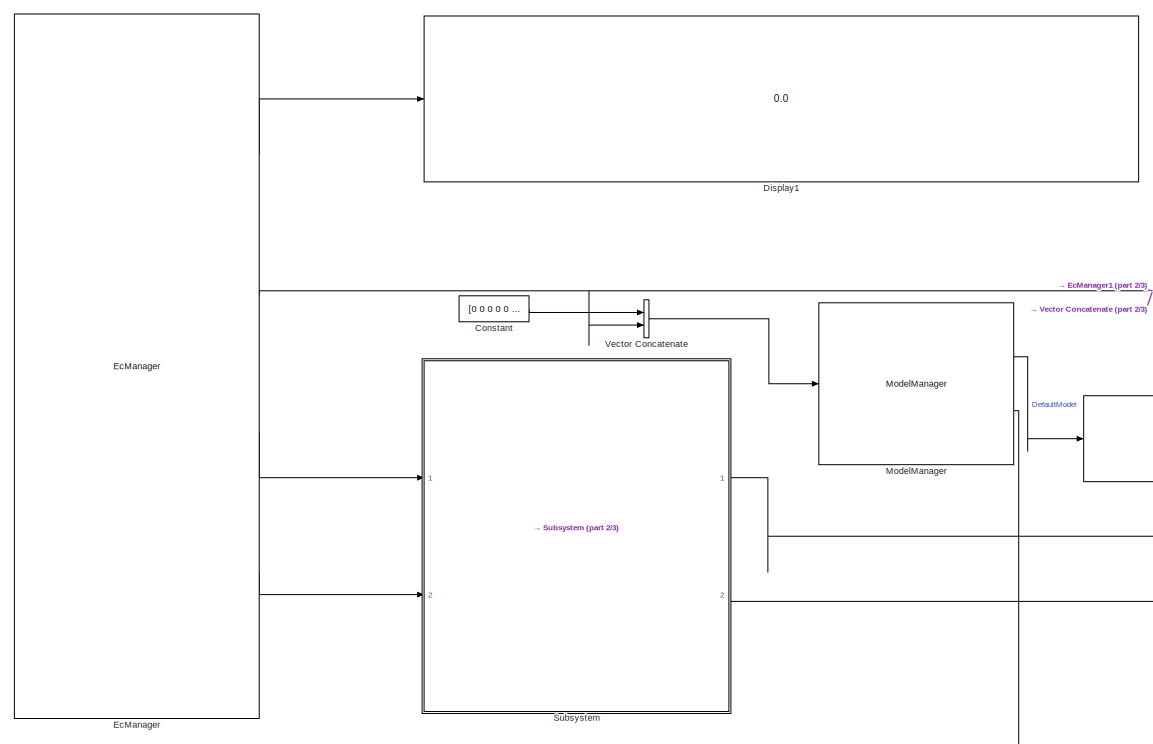
[diagram: root canvas - part 1/3, left side, full height]
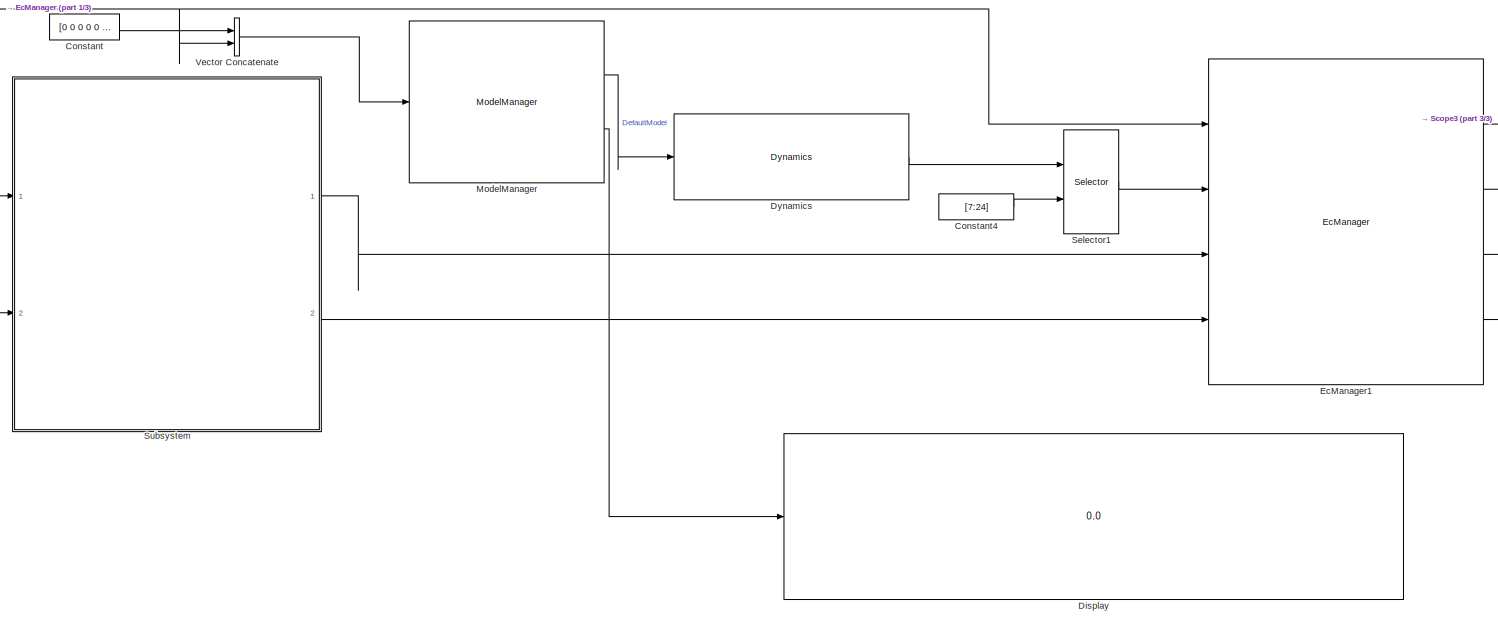
[diagram: root canvas - part 2/3, central region]
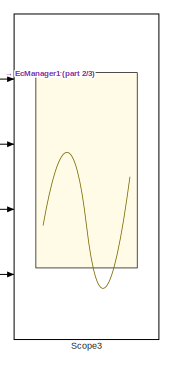
[diagram: root canvas - part 3/3, middle right region]
MODEL slx_e4fbf35a7627
KIND model
CONFIG AbsTol = auto
CONFIG EnableMultiTasking = off
CONFIG FixedStep = 0.05
CONFIG MaxStep = auto
CONFIG MinStep = auto
CONFIG RelTol = 1e-3
CONFIG SampleTimeConstraint = Unconstrained
CONFIG SolverName = ode3
CONFIG StartTime = 0.0
CONFIG StopTime = inf
BLOCK [Constant] Constant
  Value = [0 0 0 0 0 0]
BLOCK [Constant] Constant4
  Value = [7:24]
  VectorParams1D = off
BLOCK [Display] Display
  Decimation = 1
  Ports = [1]
BLOCK [Display] Display1
  Decimation = 1
  Ports = [1]
BLOCK [Reference] Dynamics  REF=Utilities/Dynamics
  Ports = [1, 1]
  SourceBlock = Utilities/Dynamics
  SourceProductName = XBotBlock Toolbox
BLOCK [Reference] EcManager  REF=EcBlockToolbox/EcManager
  Ports = [0, 4]
  SourceBlock = EcBlockToolbox/EcManager
  SourceProductName = EcBlock Toolbox
BLOCK [Reference] EcManager1  REF=EcBlockToolbox/EcManager
  Ports = [4, 4]
  SourceBlock = EcBlockToolbox/EcManager
  SourceProductName = EcBlock Toolbox
BLOCK [Reference] ModelManager  REF=XBotBlockToolbox/ModelManager
  Ports = [1, 2]
  SourceBlock = XBotBlockToolbox/ModelManager
  SourceProductName = XBotBlock Toolbox
BLOCK [Scope] Scope3
  Floating = off
  NumInputPorts = 4
  Ports = [4]
  ScopeSpecificationString = Simulink.scopes.TimeScopeBlockCfg('CurrentConfiguration', extmgr.ConfigurationSet(extmgr.Configuration('Core','General UI',true),extmgr.Configuration('Core','Source UI',true),extmgr.Configuration('Sources','WiredSimulink',true,'DataLoggingVariableName','ScopeData1'),extmgr.Configuration('Visuals','Time Domain',true,'SerializedDisplays',{struct('MinYLimReal','-1.00000','MaxYLimReal','1.00000','YLab...<+4653ch>
BLOCK [Selector] Selector1
  IndexOptions = Select all,Index vector (port)
  Indices = [1 3],1
  NumberOfDimensions = 2
  OutputSizes = 1,1
  Ports = [2, 1]
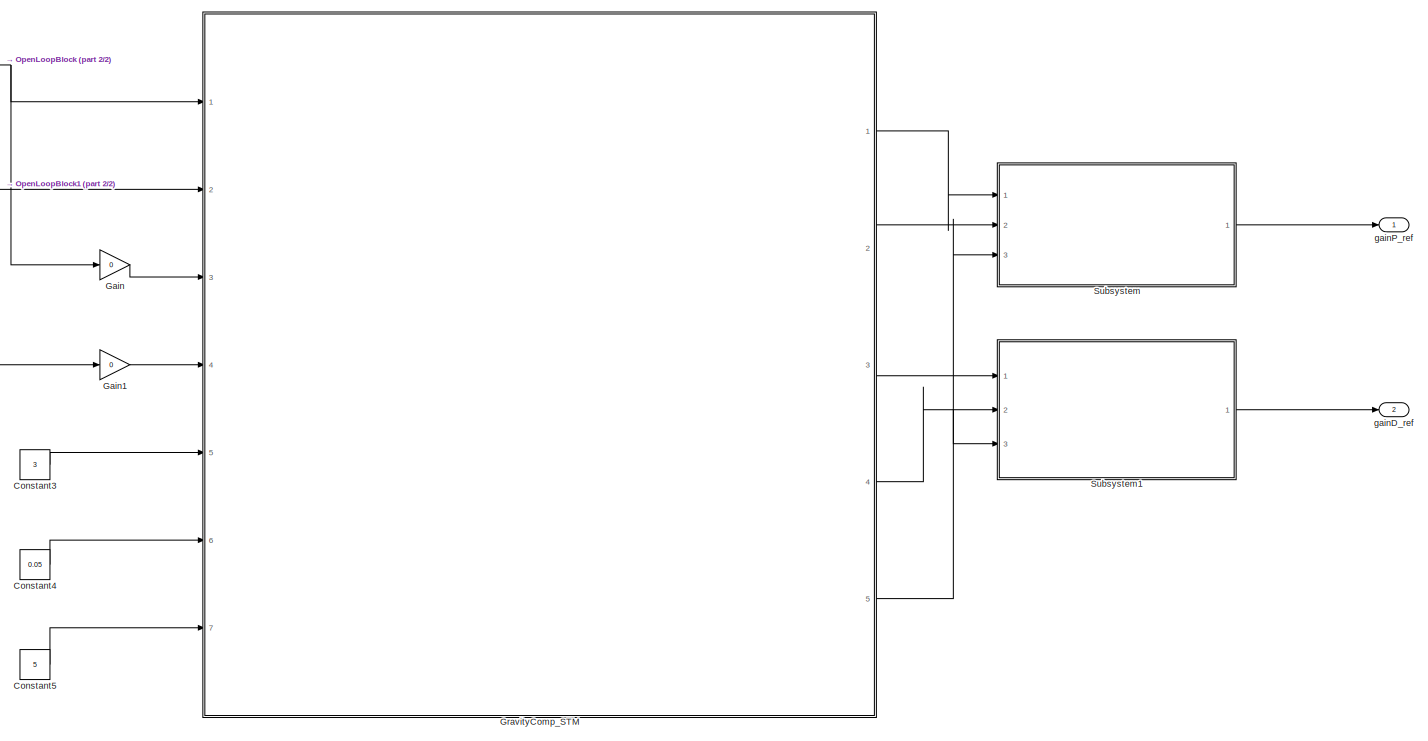
[diagram: Subsystem - part 1/2, center side, full height]
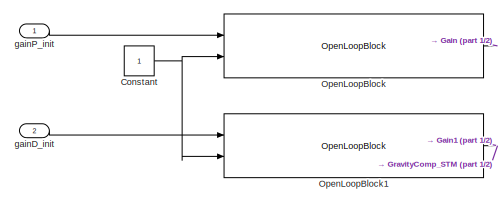
[diagram: Subsystem - part 2/2, top left region]
BLOCK [SubSystem] Subsystem
  Ports = [2, 2]
  RequestExecContextInheritance = off
BLOCK [Constant] Subsystem/Constant
BLOCK [Constant] Subsystem/Constant3
  Value = 3
BLOCK [Constant] Subsystem/Constant4
  Value = 0.05
BLOCK [Constant] Subsystem/Constant5
  Value = 5
BLOCK [Gain] Subsystem/Gain
  Gain = 0
BLOCK [Gain] Subsystem/Gain1
  Gain = 0
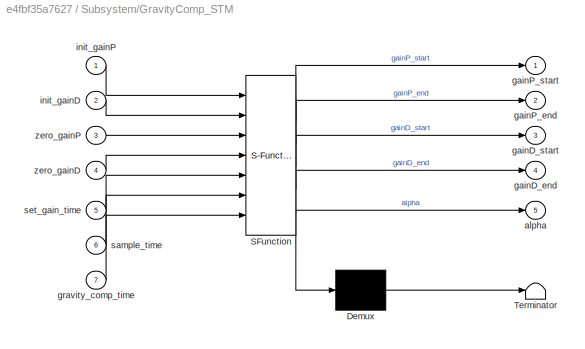
BLOCK [SubSystem] Subsystem/GravityComp_STM
  ErrorFcn = Stateflow.Translate.translate
  PermitHierarchicalResolution = ExplicitOnly
  Ports = [7, 5]
  RequestExecContextInheritance = off
  SFBlockType = Chart
  TreatAsAtomicUnit = on
BLOCK [Demux] Subsystem/GravityComp_STM/ Demux 
  Outputs = 1
  Ports = [1, 1]
BLOCK [S-Function] Subsystem/GravityComp_STM/ SFunction 
  EnableBusSupport = on
  FunctionName = sf_sfun
  PortCounts = [7 6]
  Ports = [7, 6]
  SFcnIsStateOwnerBlock = off
  SFunctionDeploymentMode = off
  Tag = Stateflow S-Function 3
BLOCK [Terminator] Subsystem/GravityComp_STM/ Terminator 
BLOCK [Outport] Subsystem/GravityComp_STM/alpha
  Port = 5
BLOCK [Outport] Subsystem/GravityComp_STM/gainD_end
  Port = 4
BLOCK [Outport] Subsystem/GravityComp_STM/gainD_start
  Port = 3
BLOCK [Outport] Subsystem/GravityComp_STM/gainP_end
  Port = 2
BLOCK [Outport] Subsystem/GravityComp_STM/gainP_start
BLOCK [Inport] Subsystem/GravityComp_STM/gravity_comp_time
  Port = 7
BLOCK [Inport] Subsystem/GravityComp_STM/init_gainD
  Port = 2
BLOCK [Inport] Subsystem/GravityComp_STM/init_gainP
BLOCK [Inport] Subsystem/GravityComp_STM/sample_time
  Port = 6
BLOCK [Inport] Subsystem/GravityComp_STM/set_gain_time
  Port = 5
BLOCK [Inport] Subsystem/GravityComp_STM/zero_gainD
  Port = 4
BLOCK [Inport] Subsystem/GravityComp_STM/zero_gainP
  Port = 3
BLOCK [Reference] Subsystem/OpenLoopBlock  REF=EcUtilities/OpenLoopBlock
  Ports = [2, 1]
  SourceBlock = EcUtilities/OpenLoopBlock
  SourceProductName = EcBlock Toolbox
  SourceType = SubSystem
BLOCK [Reference] Subsystem/OpenLoopBlock1  REF=EcUtilities/OpenLoopBlock
  Ports = [2, 1]
  SourceBlock = EcUtilities/OpenLoopBlock
  SourceProductName = EcBlock Toolbox
  SourceType = SubSystem
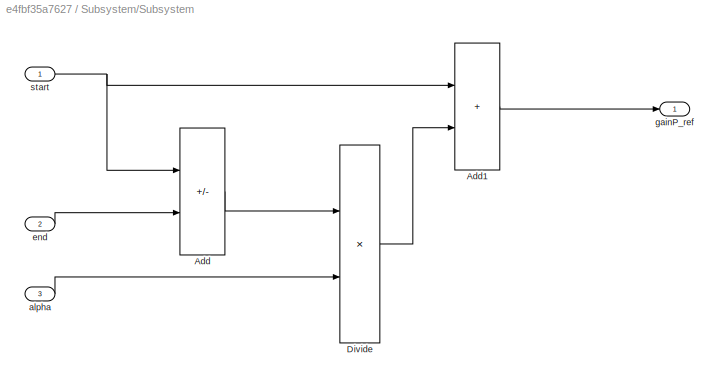
BLOCK [SubSystem] Subsystem/Subsystem
  Ports = [3, 1]
  RequestExecContextInheritance = off
BLOCK [Sum] Subsystem/Subsystem/Add
  IconShape = rectangular
  Inputs = -+
  Ports = [2, 1]
BLOCK [Sum] Subsystem/Subsystem/Add1
  IconShape = rectangular
  Ports = [2, 1]
BLOCK [Product] Subsystem/Subsystem/Divide
  Inputs = **
  Ports = [2, 1]
BLOCK [Inport] Subsystem/Subsystem/alpha
  Port = 3
BLOCK [Inport] Subsystem/Subsystem/end
  Port = 2
BLOCK [Outport] Subsystem/Subsystem/gainP_ref
BLOCK [Inport] Subsystem/Subsystem/start
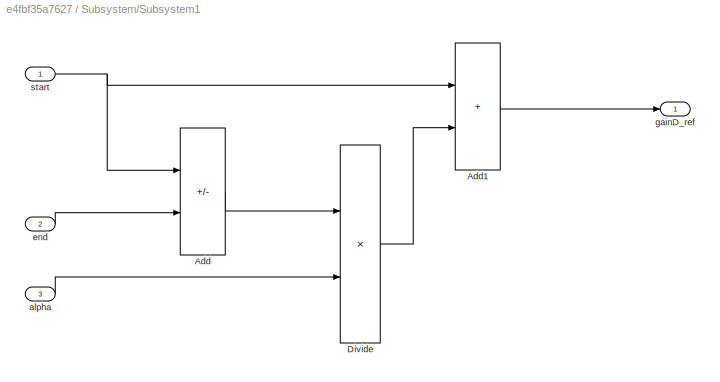
BLOCK [SubSystem] Subsystem/Subsystem1
  Ports = [3, 1]
  RequestExecContextInheritance = off
BLOCK [Sum] Subsystem/Subsystem1/Add
  IconShape = rectangular
  Inputs = -+
  Ports = [2, 1]
BLOCK [Sum] Subsystem/Subsystem1/Add1
  IconShape = rectangular
  Ports = [2, 1]
BLOCK [Product] Subsystem/Subsystem1/Divide
  Inputs = **
  Ports = [2, 1]
BLOCK [Inport] Subsystem/Subsystem1/alpha
  Port = 3
BLOCK [Inport] Subsystem/Subsystem1/end
  Port = 2
BLOCK [Outport] Subsystem/Subsystem1/gainD_ref
BLOCK [Inport] Subsystem/Subsystem1/start
BLOCK [Inport] Subsystem/gainD_init
  Port = 2
BLOCK [Outport] Subsystem/gainD_ref
  Port = 2
BLOCK [Inport] Subsystem/gainP_init
BLOCK [Outport] Subsystem/gainP_ref
BLOCK [Concatenate] Vector Concatenate
  Ports = [2, 1]
LINE Constant4:1 -> Selector1:2
LINE Constant:1 -> Vector Concatenate:1
LINE Dynamics:1 -> Selector1:1
LINE EcManager1:1 -> Scope3:1
LINE EcManager1:2 -> Scope3:2
LINE EcManager1:3 -> Scope3:3
LINE EcManager1:4 -> Scope3:4
LINE EcManager:1 -> Display1:1
NET EcManager:2 -> EcManager1:1, Vector Concatenate:2
LINE EcManager:3 -> Subsystem:1
LINE EcManager:4 -> Subsystem:2
LINE ModelManager:1 -> Dynamics:1
LINE ModelManager:2 -> Display:1
LINE Selector1:1 -> EcManager1:2
LINE Subsystem/Constant3:1 -> Subsystem/GravityComp_STM:5
LINE Subsystem/Constant4:1 -> Subsystem/GravityComp_STM:6
LINE Subsystem/Constant5:1 -> Subsystem/GravityComp_STM:7
NET Subsystem/Constant:1 -> Subsystem/OpenLoopBlock1:2, Subsystem/OpenLoopBlock:2
LINE Subsystem/Gain1:1 -> Subsystem/GravityComp_STM:4
LINE Subsystem/Gain:1 -> Subsystem/GravityComp_STM:3
LINE Subsystem/GravityComp_STM:1 -> Subsystem/Subsystem:1
LINE Subsystem/GravityComp_STM:2 -> Subsystem/Subsystem:2
LINE Subsystem/GravityComp_STM:3 -> Subsystem/Subsystem1:1
LINE Subsystem/GravityComp_STM:4 -> Subsystem/Subsystem1:2
NET Subsystem/GravityComp_STM:5 -> Subsystem/Subsystem1:3, Subsystem/Subsystem:3
NET Subsystem/OpenLoopBlock1:1 -> Subsystem/Gain1:1, Subsystem/GravityComp_STM:2
NET Subsystem/OpenLoopBlock:1 -> Subsystem/Gain:1, Subsystem/GravityComp_STM:1
LINE Subsystem/Subsystem/Add1:1 -> Subsystem/Subsystem/gainP_ref:1
LINE Subsystem/Subsystem/Add:1 -> Subsystem/Subsystem/Divide:1
LINE Subsystem/Subsystem/Divide:1 -> Subsystem/Subsystem/Add1:2
LINE Subsystem/Subsystem/alpha:1 -> Subsystem/Subsystem/Divide:2
LINE Subsystem/Subsystem/end:1 -> Subsystem/Subsystem/Add:2
NET Subsystem/Subsystem/start:1 -> Subsystem/Subsystem/Add1:1, Subsystem/Subsystem/Add:1
LINE Subsystem/Subsystem1/Add1:1 -> Subsystem/Subsystem1/gainD_ref:1
LINE Subsystem/Subsystem1/Add:1 -> Subsystem/Subsystem1/Divide:1
LINE Subsystem/Subsystem1/Divide:1 -> Subsystem/Subsystem1/Add1:2
LINE Subsystem/Subsystem1/alpha:1 -> Subsystem/Subsystem1/Divide:2
LINE Subsystem/Subsystem1/end:1 -> Subsystem/Subsystem1/Add:2
NET Subsystem/Subsystem1/start:1 -> Subsystem/Subsystem1/Add1:1, Subsystem/Subsystem1/Add:1
LINE Subsystem/Subsystem1:1 -> Subsystem/gainD_ref:1
LINE Subsystem/Subsystem:1 -> Subsystem/gainP_ref:1
LINE Subsystem/gainD_init:1 -> Subsystem/OpenLoopBlock1:1
LINE Subsystem/gainP_init:1 -> Subsystem/OpenLoopBlock:1
LINE Subsystem:1 -> EcManager1:3
LINE Subsystem:2 -> EcManager1:4
LINE Vector Concatenate:1 -> ModelManager:1
note: NET lines group one-source signal fan-out (src -> all destinations, sorted); 1:1 wires keep LINE
CHART Subsystem/GravityComp_STM states=4 transitions=4
  STATE_LABEL 'Motor_Ctrl_SetGains_Zero\n\nen: gainP_end = zero_gainP; gainD_end=zero_gainD; gainP_start = init_gainP; gainD_start=init_gainD; time=0;alpha=0;\ndu: time=time + sample_time;\n tau=time/set_gain_time;\n alpha = ((6*tau - 15)*tau + 10)*tau*tau*tau;'
  STATE_LABEL 'Motor_Ctrl_Gravity\n\nen: time=0;\ndu: time=time + sample_time;\n'
  STATE_LABEL 'Motor_Ctrl_SetGains_InitValue\n\nen: gainP_end = init_gainP; gainD_end=init_gainD; gainP_start = zero_gainP; gainD_start=zero_gainD; time=0;alpha=0;\ndu: time=time + sample_time;\n tau=time/set_gain_time;\n alpha = ((6*tau - 15)*tau + 10)*tau*tau*tau;'
  STATE_LABEL 'Stop\n\n'
CHART  states=0 transitions=0
